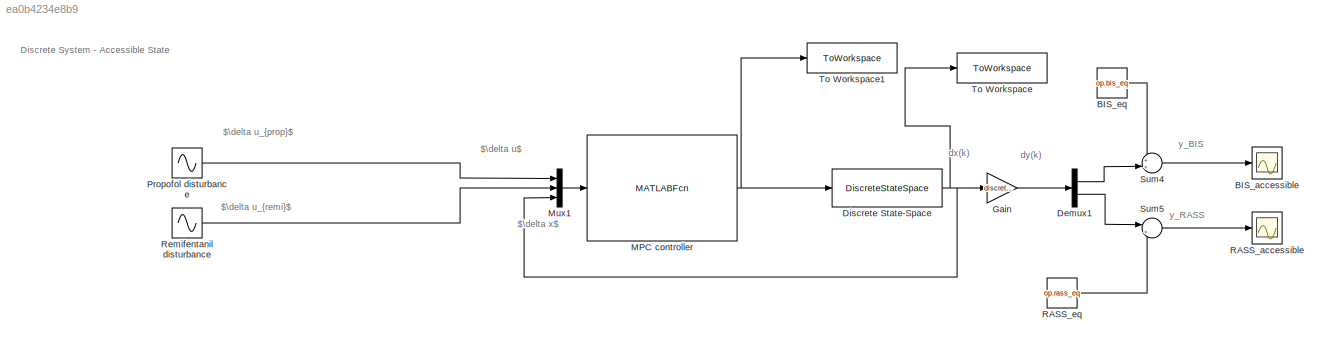
MODEL slx_ea0b4234e8b9
KIND model
CONFIG AbsTol = auto
CONFIG EnableMultiTasking = off
CONFIG FixedStep = auto
CONFIG MaxStep = auto
CONFIG MinStep = auto
CONFIG RelTol = 1e-3
CONFIG SampleTimeConstraint = Unconstrained
CONFIG SolverName = VariableStepAuto
CONFIG StartTime = 0.0
CONFIG StopTime = 10.0
BLOCK [Scope] BIS_accessible
  Floating = off
  NumInputPorts = 1
  Ports = [1]
  ScopeSpecificationString = Simulink.scopes.TimeScopeBlockCfg('CurrentConfiguration', extmgr.ConfigurationSet(extmgr.Configuration('Core','General UI',true),extmgr.Configuration('Core','Source UI',true),extmgr.Configuration('Sources','WiredSimulink',true,'DataLoggingVariableName','BIS_accessible','DataLogging',true,'DataLoggingSaveFormat','StructureWithTime'),extmgr.Configuration('Visuals','Time Domain',true,'SerializedDispl...<+1436ch>
BLOCK [Constant] BIS_eq
  Value = op.bis_eq
BLOCK [Demux] Demux1
  Outputs = 2
  Ports = [1, 2]
BLOCK [DiscreteStateSpace] Discrete State-Space
  A = discreteModel.A
  B = discreteModel.B
  C = eye(size(discreteModel.A))
  D = zeros(size(discreteModel.A,1),size(discreteModel.B,2))
  SampleTime = info.Ts
BLOCK [Gain] Gain
  Gain = discreteModel.C
  Multiplication = Matrix(K*u)
BLOCK [MATLABFcn] MPC controller
  MATLABFcn = myMPC_dist(u,condDiscMat,PH)
  OutputDimensions = 2
  Ports = [1, 1]
BLOCK [Mux] Mux1
  DisplayOption = bar
  Inputs = 3
  Ports = [3, 1]
BLOCK [Sin] Propofol disturbance
  Amplitude = 0.3*op.propofol_eq
  Frequency = 1/500
  Ports = [0, 1]
  SampleTime = info.Ts
BLOCK [Scope] RASS_accessible
  Floating = off
  NumInputPorts = 1
  Ports = [1]
  ScopeSpecificationString = Simulink.scopes.TimeScopeBlockCfg('CurrentConfiguration', extmgr.ConfigurationSet(extmgr.Configuration('Core','General UI',true),extmgr.Configuration('Core','Source UI',true),extmgr.Configuration('Sources','WiredSimulink',true,'DataLoggingVariableName','RASS_accessible','DataLogging',true,'DataLoggingSaveFormat','StructureWithTime'),extmgr.Configuration('Visuals','Time Domain',true,'SerializedDisp...<+1433ch>
BLOCK [Constant] RASS_eq
  Value = op.rass_eq
BLOCK [Sin] Remifentanil disturbance
  Amplitude = 0.3*op.remifentanil_eq
  Frequency = 1/700
  Ports = [0, 1]
  SampleTime = info.Ts
BLOCK [Sum] Sum4
  Inputs = ++|
  Ports = [2, 1]
BLOCK [Sum] Sum5
  Inputs = |++
  Ports = [2, 1]
BLOCK [ToWorkspace] To Workspace
  FixptAsFi = on
  MaxDataPoints = inf
  Ports = [1]
  SampleTime = -1
  SaveFormat = Structure With Time
  VariableName = x_debug
BLOCK [ToWorkspace] To Workspace1
  FixptAsFi = on
  MaxDataPoints = inf
  Ports = [1]
  SampleTime = -1
  SaveFormat = Structure With Time
  VariableName = input_debug
ANNOTATION (root): Discrete System - Accessible State
ANNOTATION (root): $\delta u_{prop}$
ANNOTATION (root): $\delta u_{remi}$
ANNOTATION (root): $\delta u$
ANNOTATION (root): $\delta x$
ANNOTATION (root): dx(k)
ANNOTATION (root): dy(k)
ANNOTATION (root): y_BIS
ANNOTATION (root): y_RASS
LINE BIS_eq:1 -> Sum4:1
LINE Demux1:1 -> Sum4:2
LINE Demux1:2 -> Sum5:1
NET Discrete State-Space:1 -> Gain:1, Mux1:3, To Workspace:1
LINE Gain:1 -> Demux1:1
NET MPC controller:1 -> Discrete State-Space:1, To Workspace1:1
LINE Mux1:1 -> MPC controller:1
LINE Propofol disturbance:1 -> Mux1:1
LINE RASS_eq:1 -> Sum5:2
LINE Remifentanil disturbance:1 -> Mux1:2
LINE Sum4:1 -> BIS_accessible:1
LINE Sum5:1 -> RASS_accessible:1
note: NET lines group one-source signal fan-out (src -> all destinations, sorted); 1:1 wires keep LINE
